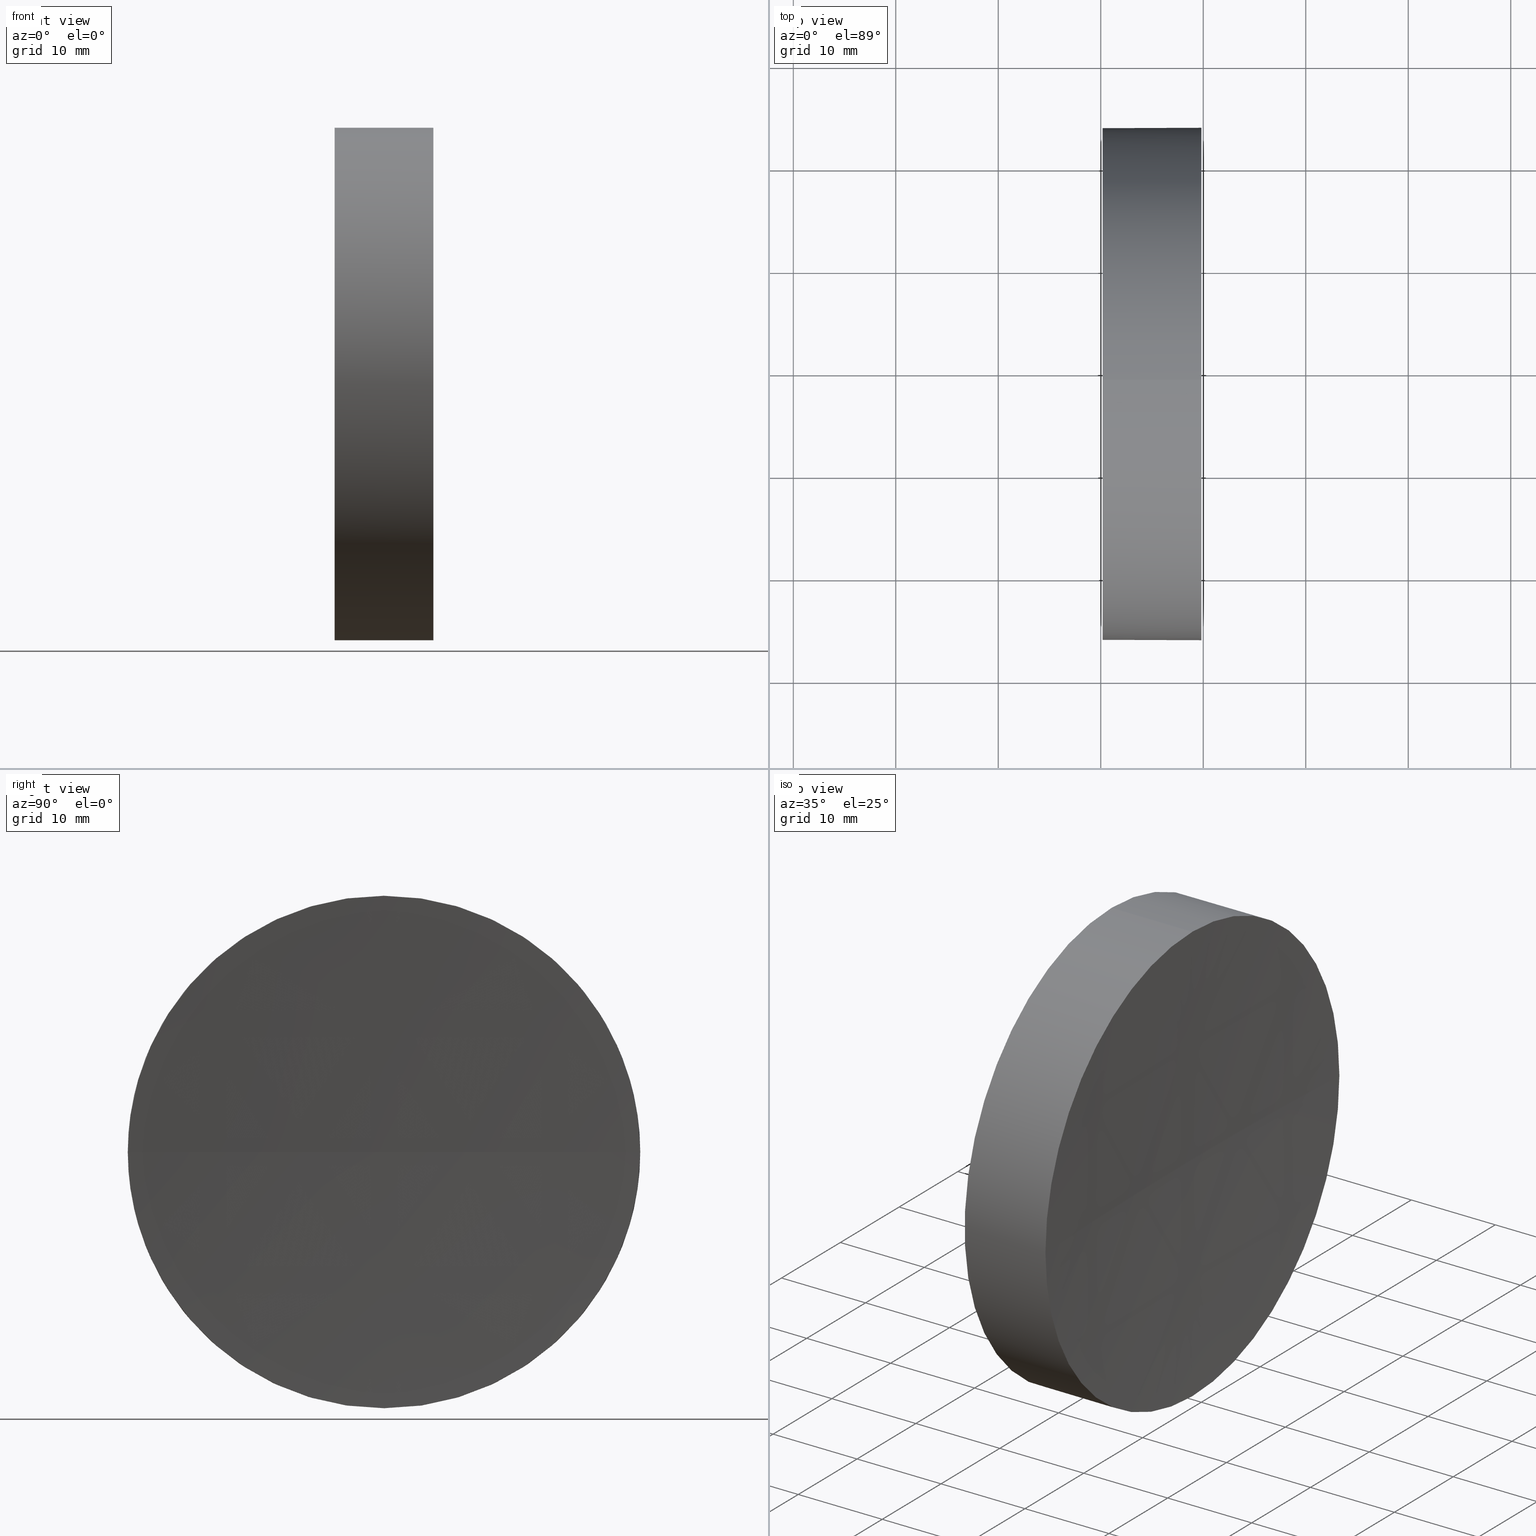
[diagram: canonical four-view strip — front | top / right | iso, engineering-drawing reading convention]
A machine part, canonical four-view strip (front | top / right | iso — engineering-drawing reading convention). The complete STEP part file that produces these views, byte-faithful:
ISO-10303-21;
HEADER;
FILE_DESCRIPTION (( 'STEP AP214' ),
    '1' );
FILE_NAME ('270047.STEP',
    '2019-07-23T05:41:12',
    ( '' ),
    ( '' ),
    'SwSTEP 2.0',
    'SolidWorks 2016',
    '' );
FILE_SCHEMA (( 'AUTOMOTIVE_DESIGN' ));
ENDSEC;

DATA;
#1 = PRODUCT_CONTEXT ( 'NONE', #40, 'mechanical' ) ;
#2 = FACE_OUTER_BOUND ( 'NONE', #26, .T. ) ;
#3 = ORIENTED_EDGE ( 'NONE', *, *, #5, .F. ) ;
#4 = LINE ( 'NONE', #80, #62 ) ;
#5 = EDGE_CURVE ( 'NONE', #164, #23, #97, .T. ) ;
#6 = CARTESIAN_POINT ( 'NONE',  ( 739.1853110690867700, 138.7560422467448100, 0.0000000000000000000 ) ) ;
#7 = CARTESIAN_POINT ( 'NONE',  ( 239.8107021831322600, 138.7560422467448700, 0.0000000000000000000 ) ) ;
#8 = PRODUCT ( '270047', '270047', '', ( #1 ) ) ;
#9 = APPLICATION_PROTOCOL_DEFINITION ( 'draft international standard', 'automotive_design', 1998, #40 ) ;
#10 = AXIS2_PLACEMENT_3D ( 'NONE', #25, #86, #171 ) ;
#11 = CARTESIAN_POINT ( 'NONE',  ( 239.8107021831322600, 138.7560422467448700, 0.0000000000000000000 ) ) ;
#12 = PRODUCT_DEFINITION ( 'δ֪', '', #22, #133 ) ;
#13 = CIRCLE ( 'NONE', #138, 500.0000000000001100 ) ;
#14 =( NAMED_UNIT ( * ) SI_UNIT ( $, .STERADIAN. ) SOLID_ANGLE_UNIT ( ) );
#15 = ORIENTED_EDGE ( 'NONE', *, *, #67, .F. ) ;
#16 = FACE_OUTER_BOUND ( 'NONE', #87, .T. ) ;
#17 = ADVANCED_FACE ( 'NONE', ( #16 ), #38, .F. ) ;
#18 = SURFACE_STYLE_FILL_AREA ( #115 ) ;
#19 = DIRECTION ( 'NONE',  ( 0.0000000000000000000, 1.224646799147353200E-016, -1.000000000000000000 ) ) ;
#20 = CARTESIAN_POINT ( 'NONE',  ( 239.1853110690867900, 138.7560422467448400, 0.0000000000000000000 ) ) ;
#21 = CARTESIAN_POINT ( 'NONE',  ( 239.8107021831322600, 113.7560422467455400, -3.061616997868293900E-015 ) ) ;
#22 = PRODUCT_DEFINITION_FORMATION_WITH_SPECIFIED_SOURCE ( '�κ�', '', #8, .NOT_KNOWN. ) ;
#23 = VERTEX_POINT ( 'NONE', #147 ) ;
#24 = FILL_AREA_STYLE_COLOUR ( '', #113 ) ;
#25 = CARTESIAN_POINT ( 'NONE',  ( 217.9702860043302100, 138.7560422467448700, 0.0000000000000000000 ) ) ;
#26 = EDGE_LOOP ( 'NONE', ( #102, #173, #52, #31 ) ) ;
#27 = CARTESIAN_POINT ( 'NONE',  ( 239.8107021831322600, 138.7560422467448700, 0.0000000000000000000 ) ) ;
#28 = AXIS2_PLACEMENT_3D ( 'NONE', #151, #135, #50 ) ;
#29 = VECTOR ( 'NONE', #168, 1000.000000000000000 ) ;
#30 = CIRCLE ( 'NONE', #160, 24.99999999999999300 ) ;
#31 = ORIENTED_EDGE ( 'NONE', *, *, #131, .F. ) ;
#32 = EDGE_CURVE ( 'NONE', #180, #164, #4, .T. ) ;
#33 = DIRECTION ( 'NONE',  ( 0.0000000000000000000, 0.0000000000000000000, -1.000000000000000000 ) ) ;
#34 = PRESENTATION_LAYER_ASSIGNMENT (  '', '', ( #119 ) ) ;
#35 = CARTESIAN_POINT ( 'NONE',  ( 239.8107021831322600, 163.7560422467441600, 0.0000000000000000000 ) ) ;
#36 = LINE ( 'NONE', #149, #29 ) ;
#37 = FACE_OUTER_BOUND ( 'NONE', #146, .T. ) ;
#38 = PLANE ( 'NONE',  #166 ) ;
#39 = ADVANCED_FACE ( 'NONE', ( #37 ), #185, .T. ) ;
#40 = APPLICATION_CONTEXT ( 'automotive_design' ) ;
#41 = FILL_AREA_STYLE_COLOUR ( '', #120 ) ;
#42 = EDGE_CURVE ( 'NONE', #65, #68, #158, .T. ) ;
#43 = DIRECTION ( 'NONE',  ( -1.000000000000000000, -0.0000000000000000000, -0.0000000000000000000 ) ) ;
#44 = APPLICATION_PROTOCOL_DEFINITION ( 'draft international standard', 'automotive_design', 1998, #127 ) ;
#45 = DIRECTION ( 'NONE',  ( 1.000000000000000000, 0.0000000000000000000, 0.0000000000000000000 ) ) ;
#46 = CYLINDRICAL_SURFACE ( 'NONE', #10, 24.99999999999999300 ) ;
#47 = PRESENTATION_STYLE_ASSIGNMENT (( #174 ) ) ;
#48 = ADVANCED_FACE ( 'NONE', ( #109 ), #77, .F. ) ;
#49 = AXIS2_PLACEMENT_3D ( 'NONE', #57, #154, #170 ) ;
#50 = DIRECTION ( 'NONE',  ( 0.0000000000000000000, 0.0000000000000000000, 1.000000000000000000 ) ) ;
#51 = DIRECTION ( 'NONE',  ( 0.0000000000000000000, 1.000000000000000000, 1.224646799147353200E-016 ) ) ;
#52 = ORIENTED_EDGE ( 'NONE', *, *, #101, .F. ) ;
#53 = ADVANCED_BREP_SHAPE_REPRESENTATION ( '270047', ( #177, #107 ), #105 ) ;
#54 = CARTESIAN_POINT ( 'NONE',  ( 217.9702860043302100, 138.7560422467448700, 0.0000000000000000000 ) ) ;
#55 = ORIENTED_EDGE ( 'NONE', *, *, #178, .F. ) ;
#56 =( LENGTH_UNIT ( ) NAMED_UNIT ( * ) SI_UNIT ( .MILLI., .METRE. ) );
#57 = CARTESIAN_POINT ( 'NONE',  ( 239.8107021831322600, 138.7560422467448700, 0.0000000000000000000 ) ) ;
#58 = DIRECTION ( 'NONE',  ( -1.000000000000000000, -0.0000000000000000000, -0.0000000000000000000 ) ) ;
#59 = SURFACE_SIDE_STYLE ('',( #18 ) ) ;
#60 = AXIS2_PLACEMENT_3D ( 'NONE', #182, #33, #66 ) ;
#61 = SHAPE_DEFINITION_REPRESENTATION ( #64, #53 ) ;
#62 = VECTOR ( 'NONE', #106, 1000.000000000000000 ) ;
#63 = ADVANCED_FACE ( 'NONE', ( #2 ), #84, .F. ) ;
#64 = PRODUCT_DEFINITION_SHAPE ( 'NONE', 'NONE',  #12 ) ;
#65 = VERTEX_POINT ( 'NONE', #21 ) ;
#66 = DIRECTION ( 'NONE',  ( 0.0000000000000000000, 1.000000000000000000, 0.0000000000000000000 ) ) ;
#67 = EDGE_CURVE ( 'NONE', #137, #23, #36, .T. ) ;
#68 = VERTEX_POINT ( 'NONE', #20 ) ;
#69 = DIRECTION ( 'NONE',  ( -1.000000000000000000, -0.0000000000000000000, -0.0000000000000000000 ) ) ;
#70 = CARTESIAN_POINT ( 'NONE',  ( 239.8107021831322600, 138.7560422467448700, -24.99999999999999300 ) ) ;
#71 = CIRCLE ( 'NONE', #89, 24.99999999999999300 ) ;
#72 = EDGE_CURVE ( 'NONE', #23, #164, #153, .T. ) ;
#73 = DIRECTION ( 'NONE',  ( 0.0000000000000000000, 0.0000000000000000000, 1.000000000000000000 ) ) ;
#74 =( LENGTH_UNIT ( ) NAMED_UNIT ( * ) SI_UNIT ( .MILLI., .METRE. ) );
#75 = ORIENTED_EDGE ( 'NONE', *, *, #178, .T. ) ;
#76 = STYLED_ITEM ( 'NONE', ( #47 ), #177 ) ;
#77 = SPHERICAL_SURFACE ( 'NONE', #60, 500.0000000000000000 ) ;
#78 = VERTEX_POINT ( 'NONE', #35 ) ;
#79 =( GEOMETRIC_REPRESENTATION_CONTEXT ( 3 ) GLOBAL_UNCERTAINTY_ASSIGNED_CONTEXT ( ( #99 ) ) GLOBAL_UNIT_ASSIGNED_CONTEXT ( ( #112, #155, #124 ) ) REPRESENTATION_CONTEXT ( 'NONE', 'WORKASPACE' ) );
#80 = CARTESIAN_POINT ( 'NONE',  ( 217.9702860043302100, 138.7560422467448700, 24.99999999999999300 ) ) ;
#81 = DIRECTION ( 'NONE',  ( 0.0000000000000000000, 1.000000000000000000, 0.0000000000000000000 ) ) ;
#82 = PRESENTATION_LAYER_ASSIGNMENT (  '', '', ( #76 ) ) ;
#83 =( NAMED_UNIT ( * ) SI_UNIT ( $, .STERADIAN. ) SOLID_ANGLE_UNIT ( ) );
#84 = SPHERICAL_SURFACE ( 'NONE', #96, 500.0000000000000000 ) ;
#85 = DIRECTION ( 'NONE',  ( 1.000000000000000000, 0.0000000000000000000, 0.0000000000000000000 ) ) ;
#86 = DIRECTION ( 'NONE',  ( -1.000000000000000000, -0.0000000000000000000, -0.0000000000000000000 ) ) ;
#87 = EDGE_LOOP ( 'NONE', ( #116, #169 ) ) ;
#88 = DIRECTION ( 'NONE',  ( 0.0000000000000000000, 0.0000000000000000000, 1.000000000000000000 ) ) ;
#89 = AXIS2_PLACEMENT_3D ( 'NONE', #11, #140, #152 ) ;
#90 = ORIENTED_EDGE ( 'NONE', *, *, #101, .T. ) ;
#91 = MECHANICAL_DESIGN_GEOMETRIC_PRESENTATION_REPRESENTATION (  '', ( #76 ), #79 ) ;
#92 = ORIENTED_EDGE ( 'NONE', *, *, #67, .T. ) ;
#93 = DIRECTION ( 'NONE',  ( 1.000000000000000000, 0.0000000000000000000, 0.0000000000000000000 ) ) ;
#94 = DIRECTION ( 'NONE',  ( 0.0000000000000000000, 0.0000000000000000000, -1.000000000000000000 ) ) ;
#95 = EDGE_CURVE ( 'NONE', #65, #180, #145, .T. ) ;
#96 = AXIS2_PLACEMENT_3D ( 'NONE', #6, #94, #81 ) ;
#97 = CIRCLE ( 'NONE', #28, 24.99999999999999300 ) ;
#98 = CARTESIAN_POINT ( 'NONE',  ( 230.1853110698390300, 138.7560422467448700, 0.0000000000000000000 ) ) ;
#99 = UNCERTAINTY_MEASURE_WITH_UNIT (LENGTH_MEASURE( 1.000000000000000100E-005 ), #112, 'distance_accuracy_value', 'NONE');
#100 = ORIENTED_EDGE ( 'NONE', *, *, #32, .T. ) ;
#101 = EDGE_CURVE ( 'NONE', #78, #68, #13, .T. ) ;
#102 = ORIENTED_EDGE ( 'NONE', *, *, #95, .F. ) ;
#103 = ORIENTED_EDGE ( 'NONE', *, *, #72, .F. ) ;
#104 = MECHANICAL_DESIGN_GEOMETRIC_PRESENTATION_REPRESENTATION (  '', ( #119 ), #117 ) ;
#105 =( GEOMETRIC_REPRESENTATION_CONTEXT ( 3 ) GLOBAL_UNCERTAINTY_ASSIGNED_CONTEXT ( ( #183 ) ) GLOBAL_UNIT_ASSIGNED_CONTEXT ( ( #56, #141, #83 ) ) REPRESENTATION_CONTEXT ( 'NONE', 'WORKASPACE' ) );
#106 = DIRECTION ( 'NONE',  ( -1.000000000000000000, -0.0000000000000000000, -0.0000000000000000000 ) ) ;
#107 = AXIS2_PLACEMENT_3D ( 'NONE', #157, #88, #45 ) ;
#108 = CARTESIAN_POINT ( 'NONE',  ( 739.1853110690867700, 138.7560422467448100, 0.0000000000000000000 ) ) ;
#109 = FACE_OUTER_BOUND ( 'NONE', #165, .T. ) ;
#110 = CARTESIAN_POINT ( 'NONE',  ( 230.1853110698390300, 138.7560422467448700, 0.0000000000000000000 ) ) ;
#111 = CARTESIAN_POINT ( 'NONE',  ( 239.8107021831322600, 138.7560422467448700, 24.99999999999999300 ) ) ;
#112 =( LENGTH_UNIT ( ) NAMED_UNIT ( * ) SI_UNIT ( .MILLI., .METRE. ) );
#113 = COLOUR_RGB ( '',1.000000000000000000, 1.000000000000000000, 1.000000000000000000 ) ;
#114 = DIRECTION ( 'NONE',  ( 0.0000000000000000000, 0.0000000000000000000, 1.000000000000000000 ) ) ;
#115 = FILL_AREA_STYLE ('',( #24 ) ) ;
#116 = ORIENTED_EDGE ( 'NONE', *, *, #5, .T. ) ;
#117 =( GEOMETRIC_REPRESENTATION_CONTEXT ( 3 ) GLOBAL_UNCERTAINTY_ASSIGNED_CONTEXT ( ( #175 ) ) GLOBAL_UNIT_ASSIGNED_CONTEXT ( ( #74, #159, #14 ) ) REPRESENTATION_CONTEXT ( 'NONE', 'WORKASPACE' ) );
#118 = FACE_OUTER_BOUND ( 'NONE', #181, .T. ) ;
#119 = STYLED_ITEM ( 'NONE', ( #172 ), #53 ) ;
#120 = COLOUR_RGB ( '',1.000000000000000000, 1.000000000000000000, 1.000000000000000000 ) ;
#121 = ORIENTED_EDGE ( 'NONE', *, *, #122, .T. ) ;
#122 = EDGE_CURVE ( 'NONE', #137, #65, #161, .T. ) ;
#123 = DIRECTION ( 'NONE',  ( 0.0000000000000000000, 0.0000000000000000000, -1.000000000000000000 ) ) ;
#124 =( NAMED_UNIT ( * ) SI_UNIT ( $, .STERADIAN. ) SOLID_ANGLE_UNIT ( ) );
#125 = CARTESIAN_POINT ( 'NONE',  ( 739.1853110690867700, 138.7560422467448100, 0.0000000000000000000 ) ) ;
#126 = DIRECTION ( 'NONE',  ( -1.000000000000000000, -0.0000000000000000000, -0.0000000000000000000 ) ) ;
#127 = APPLICATION_CONTEXT ( 'automotive_design' ) ;
#128 = AXIS2_PLACEMENT_3D ( 'NONE', #108, #19, #51 ) ;
#129 = SURFACE_SIDE_STYLE ('',( #136 ) ) ;
#130 = CLOSED_SHELL ( 'NONE', ( #134, #63, #48, #39, #17 ) ) ;
#131 = EDGE_CURVE ( 'NONE', #180, #78, #30, .T. ) ;
#132 = AXIS2_PLACEMENT_3D ( 'NONE', #54, #69, #167 ) ;
#133 = PRODUCT_DEFINITION_CONTEXT ( 'detailed design', #127, 'design' ) ;
#134 = ADVANCED_FACE ( 'NONE', ( #118 ), #46, .T. ) ;
#135 = DIRECTION ( 'NONE',  ( -1.000000000000000000, -0.0000000000000000000, -0.0000000000000000000 ) ) ;
#136 = SURFACE_STYLE_FILL_AREA ( #186 ) ;
#137 = VERTEX_POINT ( 'NONE', #70 ) ;
#138 = AXIS2_PLACEMENT_3D ( 'NONE', #125, #156, #85 ) ;
#139 = ORIENTED_EDGE ( 'NONE', *, *, #122, .F. ) ;
#140 = DIRECTION ( 'NONE',  ( -1.000000000000000000, -0.0000000000000000000, -0.0000000000000000000 ) ) ;
#141 =( NAMED_UNIT ( * ) PLANE_ANGLE_UNIT ( ) SI_UNIT ( $, .RADIAN. ) );
#142 = DIRECTION ( 'NONE',  ( 0.0000000000000000000, 0.0000000000000000000, 1.000000000000000000 ) ) ;
#143 = ORIENTED_EDGE ( 'NONE', *, *, #42, .F. ) ;
#144 = AXIS2_PLACEMENT_3D ( 'NONE', #98, #58, #114 ) ;
#145 = CIRCLE ( 'NONE', #148, 24.99999999999999300 ) ;
#146 = EDGE_LOOP ( 'NONE', ( #15, #121, #150, #100, #103 ) ) ;
#147 = CARTESIAN_POINT ( 'NONE',  ( 230.1853110698390300, 138.7560422467448700, -24.99999999999999300 ) ) ;
#148 = AXIS2_PLACEMENT_3D ( 'NONE', #7, #43, #73 ) ;
#149 = CARTESIAN_POINT ( 'NONE',  ( 217.9702860043302100, 138.7560422467448700, -24.99999999999999300 ) ) ;
#150 = ORIENTED_EDGE ( 'NONE', *, *, #95, .T. ) ;
#151 = CARTESIAN_POINT ( 'NONE',  ( 230.1853110698390300, 138.7560422467448700, 0.0000000000000000000 ) ) ;
#152 = DIRECTION ( 'NONE',  ( 0.0000000000000000000, 0.0000000000000000000, 1.000000000000000000 ) ) ;
#153 = CIRCLE ( 'NONE', #144, 24.99999999999999300 ) ;
#154 = DIRECTION ( 'NONE',  ( -1.000000000000000000, -0.0000000000000000000, -0.0000000000000000000 ) ) ;
#155 =( NAMED_UNIT ( * ) PLANE_ANGLE_UNIT ( ) SI_UNIT ( $, .RADIAN. ) );
#156 = DIRECTION ( 'NONE',  ( 0.0000000000000000000, 0.0000000000000000000, 1.000000000000000000 ) ) ;
#157 = CARTESIAN_POINT ( 'NONE',  ( 0.0000000000000000000, 0.0000000000000000000, 0.0000000000000000000 ) ) ;
#158 = CIRCLE ( 'NONE', #128, 500.0000000000000000 ) ;
#159 =( NAMED_UNIT ( * ) PLANE_ANGLE_UNIT ( ) SI_UNIT ( $, .RADIAN. ) );
#160 = AXIS2_PLACEMENT_3D ( 'NONE', #27, #126, #142 ) ;
#161 = CIRCLE ( 'NONE', #49, 24.99999999999999300 ) ;
#162 = ORIENTED_EDGE ( 'NONE', *, *, #131, .T. ) ;
#163 = PRODUCT_RELATED_PRODUCT_CATEGORY ( 'part', '', ( #8 ) ) ;
#164 = VERTEX_POINT ( 'NONE', #184 ) ;
#165 = EDGE_LOOP ( 'NONE', ( #143, #139, #55, #90 ) ) ;
#166 = AXIS2_PLACEMENT_3D ( 'NONE', #110, #93, #123 ) ;
#167 = DIRECTION ( 'NONE',  ( 0.0000000000000000000, 0.0000000000000000000, 1.000000000000000000 ) ) ;
#168 = DIRECTION ( 'NONE',  ( -1.000000000000000000, -0.0000000000000000000, -0.0000000000000000000 ) ) ;
#169 = ORIENTED_EDGE ( 'NONE', *, *, #72, .T. ) ;
#170 = DIRECTION ( 'NONE',  ( 0.0000000000000000000, 0.0000000000000000000, 1.000000000000000000 ) ) ;
#171 = DIRECTION ( 'NONE',  ( 0.0000000000000000000, 0.0000000000000000000, 1.000000000000000000 ) ) ;
#172 = PRESENTATION_STYLE_ASSIGNMENT (( #176 ) ) ;
#173 = ORIENTED_EDGE ( 'NONE', *, *, #42, .T. ) ;
#174 = SURFACE_STYLE_USAGE ( .BOTH. , #59 ) ;
#175 = UNCERTAINTY_MEASURE_WITH_UNIT (LENGTH_MEASURE( 1.000000000000000100E-005 ), #74, 'distance_accuracy_value', 'NONE');
#176 = SURFACE_STYLE_USAGE ( .BOTH. , #129 ) ;
#177 = MANIFOLD_SOLID_BREP ( '��ת1', #130 ) ;
#178 = EDGE_CURVE ( 'NONE', #78, #137, #71, .T. ) ;
#179 = ORIENTED_EDGE ( 'NONE', *, *, #32, .F. ) ;
#180 = VERTEX_POINT ( 'NONE', #111 ) ;
#181 = EDGE_LOOP ( 'NONE', ( #75, #92, #3, #179, #162 ) ) ;
#182 = CARTESIAN_POINT ( 'NONE',  ( 739.1853110690867700, 138.7560422467448100, 0.0000000000000000000 ) ) ;
#183 = UNCERTAINTY_MEASURE_WITH_UNIT (LENGTH_MEASURE( 1.000000000000000100E-005 ), #56, 'distance_accuracy_value', 'NONE');
#184 = CARTESIAN_POINT ( 'NONE',  ( 230.1853110698390300, 138.7560422467448700, 24.99999999999999300 ) ) ;
#185 = CYLINDRICAL_SURFACE ( 'NONE', #132, 24.99999999999999300 ) ;
#186 = FILL_AREA_STYLE ('',( #41 ) ) ;
ENDSEC;
END-ISO-10303-21;
